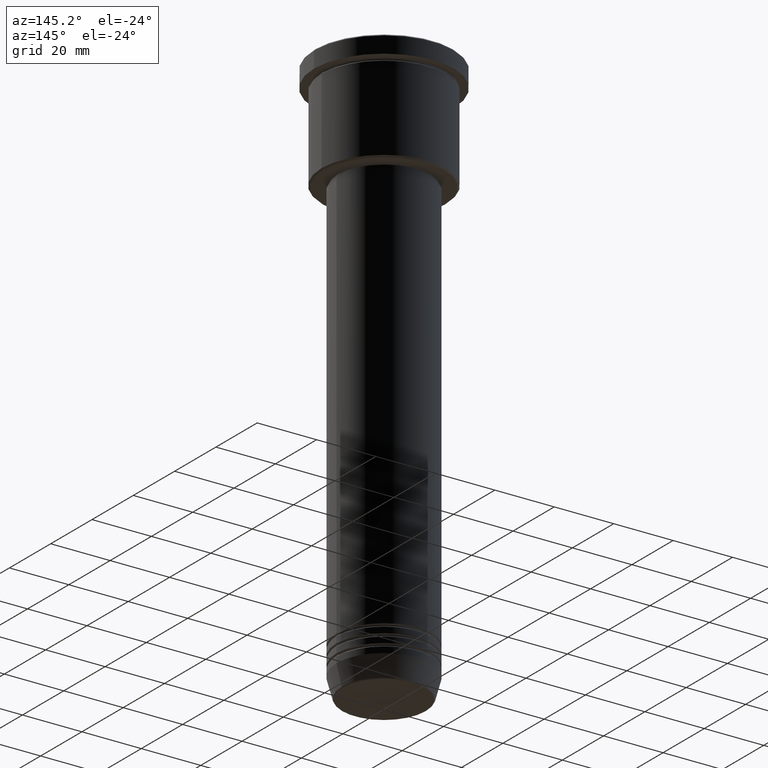
[diagram: clean part render]
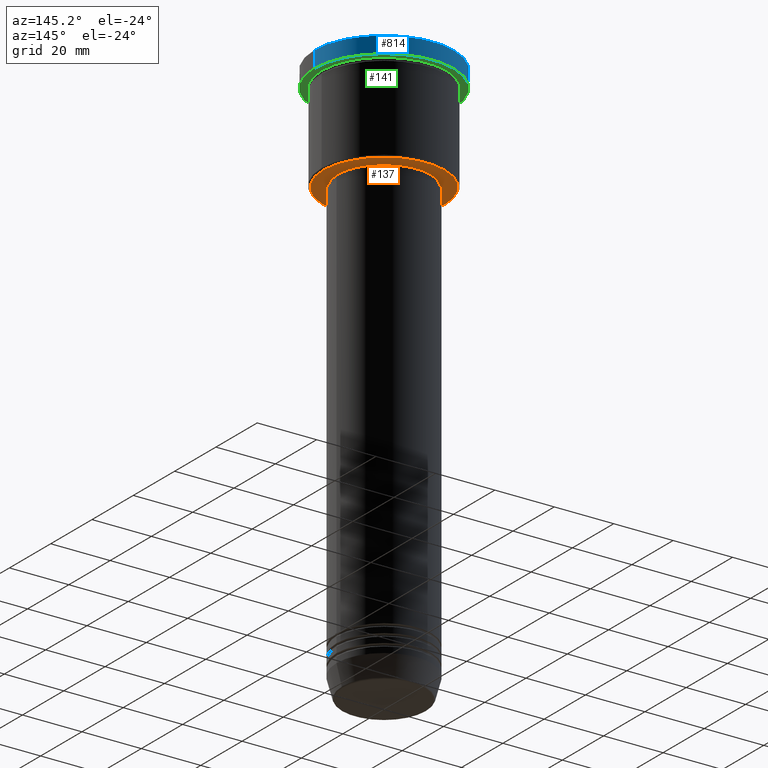
[diagram: same view with three faces highlighted in distinct colors, each labeled with its STEP entity id]
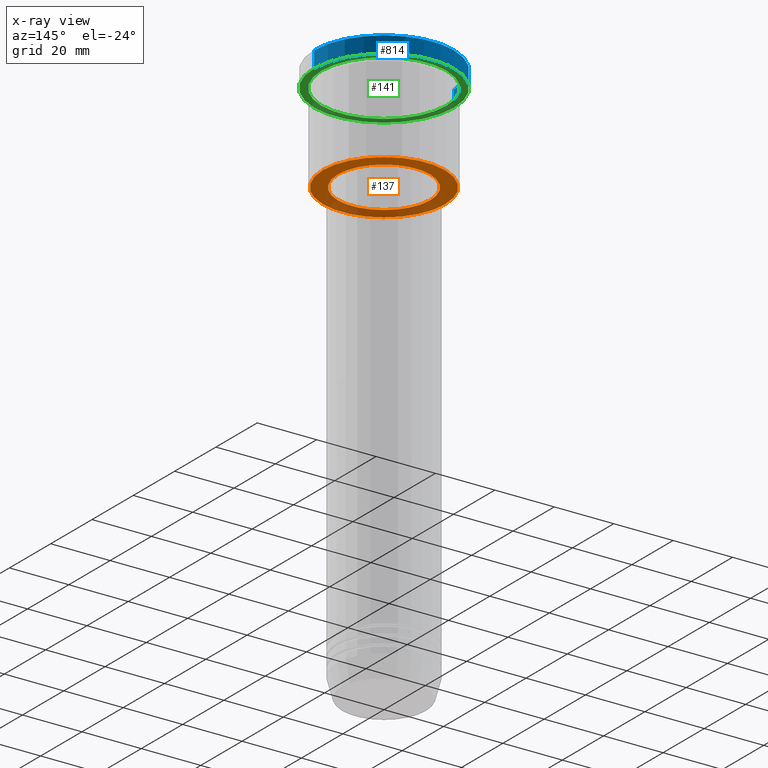
[diagram: x-ray of the same camera — body ghosted, the three highlighted faces saturated]
A machine part, auxiliary view with three faces highlighted in distinct colors.
The next image is the same camera in x-ray (body ghosted, the three faces saturated) — at least one of them is partly hidden behind the body in this view.
Their STEP definitions:

[orange] entity #137 — the highlighted planar face has unit normal (0, 0, -1).
#48 = AXIS2_PLACEMENT_3D ( 'NONE', #172, #1064, #554 ) ;
#69 = FACE_OUTER_BOUND ( 'NONE', #608, .T. ) ;
#84 = ORIENTED_EDGE ( 'NONE', *, *, #1058, .T. ) ;
#91 = PLANE ( 'NONE',  #48 ) ;
#116 = EDGE_CURVE ( 'NONE', #1076, #730, #129, .T. ) ;
#129 = CIRCLE ( 'NONE', #1133, 15.50000000000000000 ) ;
#137 = ADVANCED_FACE ( 'NONE', ( #69, #633 ), #91, .T. ) ;
#159 = CARTESIAN_POINT ( 'NONE',  ( -15.50000000000000000, 1.898202538678397557E-15, -36.00000000000000711 ) ) ;
#172 = CARTESIAN_POINT ( 'NONE',  ( 0.000000000000000000, 21.00000000000000000, -36.00000000000000711 ) ) ;
#254 = ORIENTED_EDGE ( 'NONE', *, *, #116, .T. ) ;
#404 = CARTESIAN_POINT ( 'NONE',  ( -20.49999999999998934, 2.541142108230757480E-15, -36.00000000000000711 ) ) ;
#450 = DIRECTION ( 'NONE',  ( -0.000000000000000000, -0.000000000000000000, 1.000000000000000000 ) ) ;
#532 = ORIENTED_EDGE ( 'NONE', *, *, #635, .T. ) ;
#554 = DIRECTION ( 'NONE',  ( -1.000000000000000000, 0.000000000000000000, -0.000000000000000000 ) ) ;
#572 = DIRECTION ( 'NONE',  ( -1.000000000000000000, 0.000000000000000000, 0.000000000000000000 ) ) ;
#591 = CIRCLE ( 'NONE', #885, 20.49999999999998934 ) ;
#596 = CARTESIAN_POINT ( 'NONE',  ( 20.49999999999998934, 0.000000000000000000, -36.00000000000000711 ) ) ;
#608 = EDGE_LOOP ( 'NONE', ( #84, #714 ) ) ;
#630 = EDGE_LOOP ( 'NONE', ( #254, #532 ) ) ;
#633 = FACE_BOUND ( 'NONE', #630, .T. ) ;
#635 = EDGE_CURVE ( 'NONE', #730, #1076, #647, .T. ) ;
#647 = CIRCLE ( 'NONE', #999, 15.50000000000000000 ) ;
#711 = DIRECTION ( 'NONE',  ( 1.000000000000000000, 0.000000000000000000, 0.000000000000000000 ) ) ;
#714 = ORIENTED_EDGE ( 'NONE', *, *, #771, .T. ) ;
#730 = VERTEX_POINT ( 'NONE', #159 ) ;
#749 = DIRECTION ( 'NONE',  ( 0.000000000000000000, 0.000000000000000000, -1.000000000000000000 ) ) ;
#771 = EDGE_CURVE ( 'NONE', #1002, #898, #591, .T. ) ;
#788 = CARTESIAN_POINT ( 'NONE',  ( 0.000000000000000000, 0.000000000000000000, -36.00000000000000711 ) ) ;
#799 = CARTESIAN_POINT ( 'NONE',  ( 0.000000000000000000, 0.000000000000000000, -36.00000000000000711 ) ) ;
#809 = AXIS2_PLACEMENT_3D ( 'NONE', #881, #895, #899 ) ;
#878 = DIRECTION ( 'NONE',  ( 1.000000000000000000, 0.000000000000000000, 0.000000000000000000 ) ) ;
#881 = CARTESIAN_POINT ( 'NONE',  ( 0.000000000000000000, 0.000000000000000000, -36.00000000000000711 ) ) ;
#885 = AXIS2_PLACEMENT_3D ( 'NONE', #1012, #749, #572 ) ;
#895 = DIRECTION ( 'NONE',  ( 0.000000000000000000, 0.000000000000000000, -1.000000000000000000 ) ) ;
#898 = VERTEX_POINT ( 'NONE', #596 ) ;
#899 = DIRECTION ( 'NONE',  ( -1.000000000000000000, 0.000000000000000000, 0.000000000000000000 ) ) ;
#999 = AXIS2_PLACEMENT_3D ( 'NONE', #788, #450, #878 ) ;
#1002 = VERTEX_POINT ( 'NONE', #404 ) ;
#1012 = CARTESIAN_POINT ( 'NONE',  ( 0.000000000000000000, 0.000000000000000000, -36.00000000000000711 ) ) ;
#1058 = EDGE_CURVE ( 'NONE', #898, #1002, #1174, .T. ) ;
#1064 = DIRECTION ( 'NONE',  ( 0.000000000000000000, 0.000000000000000000, -1.000000000000000000 ) ) ;
#1076 = VERTEX_POINT ( 'NONE', #1150 ) ;
#1078 = DIRECTION ( 'NONE',  ( -0.000000000000000000, -0.000000000000000000, 1.000000000000000000 ) ) ;
#1133 = AXIS2_PLACEMENT_3D ( 'NONE', #799, #1078, #711 ) ;
#1150 = CARTESIAN_POINT ( 'NONE',  ( 15.50000000000000000, 0.000000000000000000, -36.00000000000000711 ) ) ;
#1174 = CIRCLE ( 'NONE', #809, 20.49999999999998934 ) ;

[blue] entity #814 — the highlighted cylindrical surface (partial cylindrical patch) has radius 23.5 mm, axis along (-0, -0, 1).
#31 = CARTESIAN_POINT ( 'NONE',  ( 0.000000000000000000, 0.000000000000000000, -5.999999999999994671 ) ) ;
#51 = CARTESIAN_POINT ( 'NONE',  ( -23.50000000000000000, 2.877919977996280320E-15, 0.000000000000000000 ) ) ;
#96 = DIRECTION ( 'NONE',  ( -0.000000000000000000, -0.000000000000000000, 1.000000000000000000 ) ) ;
#180 = VERTEX_POINT ( 'NONE', #817 ) ;
#203 = FACE_OUTER_BOUND ( 'NONE', #1157, .T. ) ;
#223 = AXIS2_PLACEMENT_3D ( 'NONE', #31, #492, #483 ) ;
#227 = EDGE_CURVE ( 'NONE', #180, #264, #729, .T. ) ;
#264 = VERTEX_POINT ( 'NONE', #360 ) ;
#278 = ORIENTED_EDGE ( 'NONE', *, *, #402, .T. ) ;
#282 = DIRECTION ( 'NONE',  ( 1.000000000000000000, 0.000000000000000000, 0.000000000000000000 ) ) ;
#283 = VECTOR ( 'NONE', #638, 1000.000000000000000 ) ;
#327 = CARTESIAN_POINT ( 'NONE',  ( 23.50000000000000000, 0.000000000000000000, -5.999999999999994671 ) ) ;
#343 = EDGE_CURVE ( 'NONE', #983, #180, #758, .T. ) ;
#360 = CARTESIAN_POINT ( 'NONE',  ( -23.50000000000000000, 2.877919977996280320E-15, -0.5000000000000281997 ) ) ;
#379 = CYLINDRICAL_SURFACE ( 'NONE', #697, 23.50000000000000000 ) ;
#402 = EDGE_CURVE ( 'NONE', #264, #792, #789, .T. ) ;
#461 = ORIENTED_EDGE ( 'NONE', *, *, #343, .T. ) ;
#473 = VECTOR ( 'NONE', #96, 1000.000000000000000 ) ;
#483 = DIRECTION ( 'NONE',  ( 1.000000000000000000, 0.000000000000000000, 0.000000000000000000 ) ) ;
#492 = DIRECTION ( 'NONE',  ( -0.000000000000000000, -0.000000000000000000, 1.000000000000000000 ) ) ;
#612 = ORIENTED_EDGE ( 'NONE', *, *, #724, .F. ) ;
#638 = DIRECTION ( 'NONE',  ( -0.000000000000000000, -0.000000000000000000, 1.000000000000000000 ) ) ;
#695 = AXIS2_PLACEMENT_3D ( 'NONE', #1113, #750, #1008 ) ;
#697 = AXIS2_PLACEMENT_3D ( 'NONE', #826, #1091, #282 ) ;
#724 = EDGE_CURVE ( 'NONE', #983, #792, #1179, .T. ) ;
#729 = LINE ( 'NONE', #51, #473 ) ;
#750 = DIRECTION ( 'NONE',  ( 0.000000000000000000, 0.000000000000000000, -1.000000000000000000 ) ) ;
#758 = CIRCLE ( 'NONE', #223, 23.50000000000000000 ) ;
#789 = CIRCLE ( 'NONE', #695, 23.50000000000000000 ) ;
#792 = VERTEX_POINT ( 'NONE', #1017 ) ;
#814 = ADVANCED_FACE ( 'NONE', ( #203 ), #379, .T. ) ;
#817 = CARTESIAN_POINT ( 'NONE',  ( -23.50000000000000000, 2.877919977996280320E-15, -5.999999999999994671 ) ) ;
#826 = CARTESIAN_POINT ( 'NONE',  ( 0.000000000000000000, 0.000000000000000000, 0.000000000000000000 ) ) ;
#983 = VERTEX_POINT ( 'NONE', #327 ) ;
#985 = CARTESIAN_POINT ( 'NONE',  ( 23.50000000000000000, 0.000000000000000000, 0.000000000000000000 ) ) ;
#1008 = DIRECTION ( 'NONE',  ( 1.000000000000000000, 0.000000000000000000, 0.000000000000000000 ) ) ;
#1017 = CARTESIAN_POINT ( 'NONE',  ( 23.50000000000000000, 0.000000000000000000, -0.5000000000000281997 ) ) ;
#1030 = ORIENTED_EDGE ( 'NONE', *, *, #227, .T. ) ;
#1091 = DIRECTION ( 'NONE',  ( -0.000000000000000000, -0.000000000000000000, 1.000000000000000000 ) ) ;
#1113 = CARTESIAN_POINT ( 'NONE',  ( 0.000000000000000000, 0.000000000000000000, -0.5000000000000281997 ) ) ;
#1157 = EDGE_LOOP ( 'NONE', ( #461, #1030, #278, #612 ) ) ;
#1179 = LINE ( 'NONE', #985, #283 ) ;

[green] entity #141 — the highlighted planar face has unit normal (0, 0, -1).
#28 = EDGE_CURVE ( 'NONE', #197, #103, #570, .T. ) ;
#31 = CARTESIAN_POINT ( 'NONE',  ( 0.000000000000000000, 0.000000000000000000, -5.999999999999994671 ) ) ;
#66 = CIRCLE ( 'NONE', #303, 23.50000000000000000 ) ;
#88 = CARTESIAN_POINT ( 'NONE',  ( -21.00000000000000000, 0.000000000000000000, -5.999999999999994671 ) ) ;
#103 = VERTEX_POINT ( 'NONE', #626 ) ;
#119 = ORIENTED_EDGE ( 'NONE', *, *, #343, .F. ) ;
#141 = ADVANCED_FACE ( 'NONE', ( #453, #978 ), #1180, .T. ) ;
#180 = VERTEX_POINT ( 'NONE', #817 ) ;
#197 = VERTEX_POINT ( 'NONE', #88 ) ;
#223 = AXIS2_PLACEMENT_3D ( 'NONE', #31, #492, #483 ) ;
#225 = DIRECTION ( 'NONE',  ( -1.000000000000000000, 0.000000000000000000, 0.000000000000000000 ) ) ;
#272 = ORIENTED_EDGE ( 'NONE', *, *, #1015, .T. ) ;
#274 = CARTESIAN_POINT ( 'NONE',  ( 0.000000000000000000, 23.50000000000000000, -5.999999999999994671 ) ) ;
#303 = AXIS2_PLACEMENT_3D ( 'NONE', #1084, #891, #543 ) ;
#326 = DIRECTION ( 'NONE',  ( -0.000000000000000000, -0.000000000000000000, 1.000000000000000000 ) ) ;
#327 = CARTESIAN_POINT ( 'NONE',  ( 23.50000000000000000, 0.000000000000000000, -5.999999999999994671 ) ) ;
#343 = EDGE_CURVE ( 'NONE', #983, #180, #758, .T. ) ;
#345 = AXIS2_PLACEMENT_3D ( 'NONE', #1144, #326, #698 ) ;
#453 = FACE_BOUND ( 'NONE', #980, .T. ) ;
#470 = ORIENTED_EDGE ( 'NONE', *, *, #28, .T. ) ;
#477 = CIRCLE ( 'NONE', #1056, 21.00000000000000000 ) ;
#483 = DIRECTION ( 'NONE',  ( 1.000000000000000000, 0.000000000000000000, 0.000000000000000000 ) ) ;
#492 = DIRECTION ( 'NONE',  ( -0.000000000000000000, -0.000000000000000000, 1.000000000000000000 ) ) ;
#543 = DIRECTION ( 'NONE',  ( 1.000000000000000000, 0.000000000000000000, 0.000000000000000000 ) ) ;
#564 = DIRECTION ( 'NONE',  ( 0.000000000000000000, 0.000000000000000000, -1.000000000000000000 ) ) ;
#570 = CIRCLE ( 'NONE', #345, 21.00000000000000000 ) ;
#626 = CARTESIAN_POINT ( 'NONE',  ( 21.00000000000000000, 2.571758278209441661E-15, -5.999999999999994671 ) ) ;
#676 = CARTESIAN_POINT ( 'NONE',  ( 0.000000000000000000, 0.000000000000000000, -5.999999999999994671 ) ) ;
#686 = EDGE_CURVE ( 'NONE', #180, #983, #66, .T. ) ;
#698 = DIRECTION ( 'NONE',  ( -1.000000000000000000, 0.000000000000000000, 0.000000000000000000 ) ) ;
#748 = ORIENTED_EDGE ( 'NONE', *, *, #686, .F. ) ;
#758 = CIRCLE ( 'NONE', #223, 23.50000000000000000 ) ;
#817 = CARTESIAN_POINT ( 'NONE',  ( -23.50000000000000000, 2.877919977996280320E-15, -5.999999999999994671 ) ) ;
#891 = DIRECTION ( 'NONE',  ( -0.000000000000000000, -0.000000000000000000, 1.000000000000000000 ) ) ;
#978 = FACE_OUTER_BOUND ( 'NONE', #1101, .T. ) ;
#980 = EDGE_LOOP ( 'NONE', ( #470, #272 ) ) ;
#983 = VERTEX_POINT ( 'NONE', #327 ) ;
#1013 = DIRECTION ( 'NONE',  ( -1.000000000000000000, 0.000000000000000000, -0.000000000000000000 ) ) ;
#1015 = EDGE_CURVE ( 'NONE', #103, #197, #477, .T. ) ;
#1040 = DIRECTION ( 'NONE',  ( -0.000000000000000000, -0.000000000000000000, 1.000000000000000000 ) ) ;
#1056 = AXIS2_PLACEMENT_3D ( 'NONE', #676, #1040, #225 ) ;
#1084 = CARTESIAN_POINT ( 'NONE',  ( 0.000000000000000000, 0.000000000000000000, -5.999999999999994671 ) ) ;
#1101 = EDGE_LOOP ( 'NONE', ( #119, #748 ) ) ;
#1116 = AXIS2_PLACEMENT_3D ( 'NONE', #274, #564, #1013 ) ;
#1144 = CARTESIAN_POINT ( 'NONE',  ( 0.000000000000000000, 0.000000000000000000, -5.999999999999994671 ) ) ;
#1180 = PLANE ( 'NONE',  #1116 ) ;